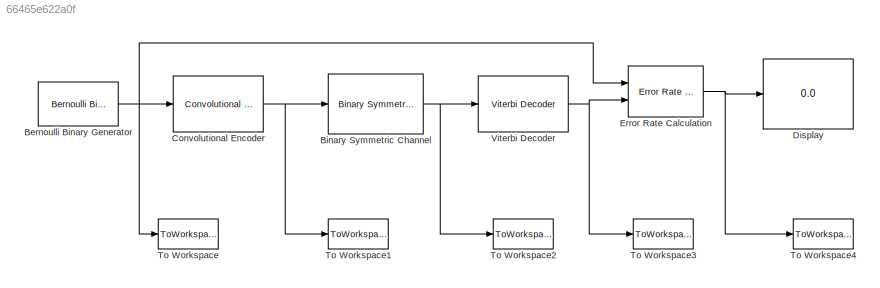
MODEL slx_66465e622a0f
KIND model
CONFIG AbsTol = auto
CONFIG FixedStep = auto
CONFIG MaxStep = auto
CONFIG MinStep = auto
CONFIG RelTol = 1e-3
CONFIG SampleTimeConstraint = Unconstrained
CONFIG Solver = VariableStepAuto
CONFIG SolverMode = Auto
CONFIG SolverName = VariableStepAuto
CONFIG StartTime = 0.0
CONFIG StopTime = inf
BLOCK [Reference] Bernoulli Binary Generator  REF=commrandsrc3/Bernoulli Binary
Generator
  Ports = [0, 1]
  SourceBlock = commrandsrc3/Bernoulli Binary\nGenerator
  SourceType = Bernoulli Binary Generator
BLOCK [Reference] Binary Symmetric Channel  REF=commchan3/Binary Symmetric
Channel
  Ports = [1, 1]
  SourceBlock = commchan3/Binary Symmetric\nChannel
  SourceType = Binary Symmetric Channel
BLOCK [Reference] Convolutional Encoder  REF=commcnvcod2/Convolutional
Encoder
  Ports = [1, 1]
  SourceBlock = commcnvcod2/Convolutional\nEncoder
  SourceType = Convolutional Encoder
BLOCK [Display] Display
  Decimation = 1
  Ports = [1]
BLOCK [Reference] Error Rate Calculation  REF=commsink2/Error Rate
Calculation
  Ports = [2, 1]
  SourceBlock = commsink2/Error Rate\nCalculation
  SourceType = Error Rate Calculation
BLOCK [ToWorkspace] To Workspace
  FixptAsFi = on
  MaxDataPoints = inf
  Ports = [1]
  SampleTime = -1
  Save2DSignal = 3-D array (concatenate along third dimension)
  SaveFormat = Timeseries
  VariableName = txBits
BLOCK [ToWorkspace] To Workspace1
  FixptAsFi = on
  MaxDataPoints = inf
  Ports = [1]
  SampleTime = -1
  Save2DSignal = 3-D array (concatenate along third dimension)
  SaveFormat = Timeseries
  VariableName = txCoded
BLOCK [ToWorkspace] To Workspace2
  FixptAsFi = on
  MaxDataPoints = inf
  Ports = [1]
  SampleTime = -1
  Save2DSignal = 3-D array (concatenate along third dimension)
  SaveFormat = Timeseries
  VariableName = rxCoded
BLOCK [ToWorkspace] To Workspace3
  FixptAsFi = on
  MaxDataPoints = inf
  Ports = [1]
  SampleTime = -1
  Save2DSignal = 3-D array (concatenate along third dimension)
  SaveFormat = Timeseries
  VariableName = rxBits
BLOCK [ToWorkspace] To Workspace4
  FixptAsFi = on
  MaxDataPoints = inf
  Ports = [1]
  SampleTime = -1
  Save2DSignal = 3-D array (concatenate along third dimension)
  SaveFormat = Timeseries
  VariableName = berData
BLOCK [Reference] Viterbi Decoder  REF=commcnvcod2/Viterbi Decoder
  Ports = [1, 1]
  SourceBlock = commcnvcod2/Viterbi Decoder
  SourceType = Viterbi Decoder
NET Bernoulli Binary Generator:1 -> Convolutional Encoder:1, Error Rate Calculation:1, To Workspace:1
NET Binary Symmetric Channel:1 -> To Workspace2:1, Viterbi Decoder:1
NET Convolutional Encoder:1 -> Binary Symmetric Channel:1, To Workspace1:1
NET Error Rate Calculation:1 -> Display:1, To Workspace4:1
NET Viterbi Decoder:1 -> Error Rate Calculation:2, To Workspace3:1
note: NET lines group one-source signal fan-out (src -> all destinations, sorted); 1:1 wires keep LINE
